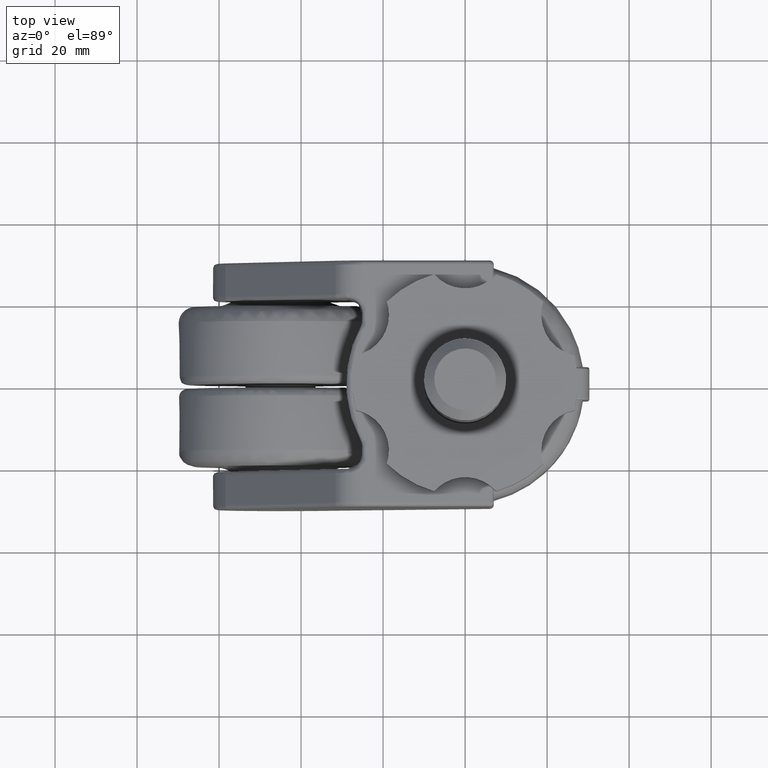
[diagram: clean part render]
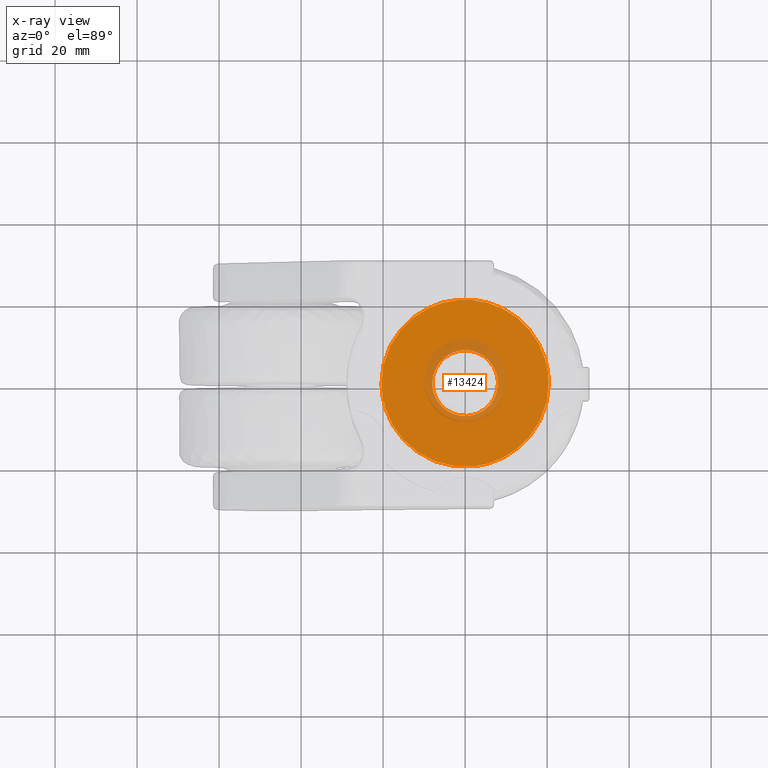
[diagram: x-ray — body ghosted, one internal face saturated and labeled with its STEP entity id]
A machine part, top view, then the same camera in x-ray: the body is ghosted and one INTERNAL B-rep face — a face not visible from any outside direction — is saturated and labeled: STEP entity #13424.
In plain terms, the highlighted face is a freeform B-spline surface patch.
Its self-contained STEP definition (entity closure, byte-faithful):
#5338=CARTESIAN_POINT('',(8.0,0.0,-5.0));
#5339=VERTEX_POINT('',#5338);
#5340=CARTESIAN_POINT('',(0.627672766013516,-7.975338669850010,-5.0));
#5341=VERTEX_POINT('',#5340);
#5342=CARTESIAN_POINT('',(8.0,0.0,-5.0));
#5343=CARTESIAN_POINT('',(8.0,-7.395123932910806,-4.999999999999999));
#5344=CARTESIAN_POINT('',(0.627672766013516,-7.975338669850010,-5.0));
#5352=(BOUNDED_CURVE()B_SPLINE_CURVE(2,(#5342,#5343,#5344),.UNSPECIFIED.,.F.,.U.)B_SPLINE_CURVE_WITH_KNOTS((3,3),(0.0,0.236331300624567),.UNSPECIFIED.)CURVE()GEOMETRIC_REPRESENTATION_ITEM()RATIONAL_B_SPLINE_CURVE((1.0,0.723120658614804,0.969723356154702))REPRESENTATION_ITEM(''));
#5353=EDGE_CURVE('',#5339,#5341,#5352,.T.);
#5355=CARTESIAN_POINT('',(-0.627672766013513,7.975338669850010,-5.0));
#5356=VERTEX_POINT('',#5355);
#5357=CARTESIAN_POINT('',(-0.627672766013513,7.975338669850010,-5.0));
#5358=CARTESIAN_POINT('',(-0.314320856252994,8.0,-5.000000000000001));
#5359=CARTESIAN_POINT('',(0.0,8.0,-5.0));
#5360=CARTESIAN_POINT('',(8.0,8.0,-5.000000000000001));
#5361=CARTESIAN_POINT('',(8.0,0.0,-5.0));
#5369=(BOUNDED_CURVE()B_SPLINE_CURVE(2,(#5357,#5358,#5359,#5360,#5361),.UNSPECIFIED.,.F.,.U.)B_SPLINE_CURVE_WITH_KNOTS((3,2,3),(0.736331300624567,0.750000000000000,1.0),.UNSPECIFIED.)CURVE()GEOMETRIC_REPRESENTATION_ITEM()RATIONAL_B_SPLINE_CURVE((0.969723356154702,0.983986122571744,1.0,0.707106781186548,1.0))REPRESENTATION_ITEM(''));
#5370=EDGE_CURVE('',#5356,#5339,#5369,.T.);
#5437=CARTESIAN_POINT('',(-8.0,0.0,-5.0));
#5438=VERTEX_POINT('',#5437);
#5439=CARTESIAN_POINT('',(0.627672766013516,-7.975338669850010,-5.000000000000001));
#5440=CARTESIAN_POINT('',(0.314320856252996,-8.000000000000002,-5.000000000000001));
#5441=CARTESIAN_POINT('',(0.0,-8.0,-5.0));
#5442=CARTESIAN_POINT('',(-8.0,-8.0,-5.000000000000001));
#5443=CARTESIAN_POINT('',(-8.0,0.0,-5.0));
#5451=(BOUNDED_CURVE()B_SPLINE_CURVE(2,(#5439,#5440,#5441,#5442,#5443),.UNSPECIFIED.,.F.,.U.)B_SPLINE_CURVE_WITH_KNOTS((3,2,3),(0.236331300624567,0.250000000000000,0.500000000000000),.UNSPECIFIED.)CURVE()GEOMETRIC_REPRESENTATION_ITEM()RATIONAL_B_SPLINE_CURVE((0.969723356154702,0.983986122571744,1.0,0.707106781186548,1.0))REPRESENTATION_ITEM(''));
#5452=EDGE_CURVE('',#5341,#5438,#5451,.T.);
#5486=CARTESIAN_POINT('',(-8.0,0.0,-5.0));
#5487=CARTESIAN_POINT('',(-8.0,7.395123932910781,-5.0));
#5488=CARTESIAN_POINT('',(-0.627672766013513,7.975338669850010,-5.0));
#5496=(BOUNDED_CURVE()B_SPLINE_CURVE(2,(#5486,#5487,#5488),.UNSPECIFIED.,.F.,.U.)B_SPLINE_CURVE_WITH_KNOTS((3,3),(0.500000000000000,0.736331300624566),.UNSPECIFIED.)CURVE()GEOMETRIC_REPRESENTATION_ITEM()RATIONAL_B_SPLINE_CURVE((1.0,0.723120658614805,0.969723356154701))REPRESENTATION_ITEM(''));
#5497=EDGE_CURVE('',#5438,#5356,#5496,.T.);
#6889=CARTESIAN_POINT('',(2.355470283446740,-20.263557470397618,-5.000000000000004));
#6890=VERTEX_POINT('',#6889);
#6904=CARTESIAN_POINT('',(-20.399999999999999,0.0,-5.0));
#6905=VERTEX_POINT('',#6904);
#6906=CARTESIAN_POINT('',(2.355470283446740,-20.263557470397622,-5.000000000000004));
#6907=CARTESIAN_POINT('',(1.181686914214468,-20.400000000000002,-4.999999999999999));
#6908=CARTESIAN_POINT('',(0.0,-20.399999999999999,-5.0));
#6909=CARTESIAN_POINT('',(-20.399999999999999,-20.399999999999999,-5.000000000000001));
#6910=CARTESIAN_POINT('',(-20.399999999999999,0.0,-5.0));
#6918=(BOUNDED_CURVE()B_SPLINE_CURVE(2,(#6906,#6907,#6908,#6909,#6910),.UNSPECIFIED.,.F.,.U.)B_SPLINE_CURVE_WITH_KNOTS((3,2,3),(0.729999999989789,0.750000000000000,1.0),.UNSPECIFIED.)CURVE()GEOMETRIC_REPRESENTATION_ITEM()RATIONAL_B_SPLINE_CURVE((0.956886118170562,0.976568542482961,1.0,0.707106781186548,1.0))REPRESENTATION_ITEM(''));
#6919=EDGE_CURVE('',#6890,#6905,#6918,.T.);
#6921=CARTESIAN_POINT('',(20.400000000607481,4.426226E-016,-5.0));
#6922=VERTEX_POINT('',#6921);
#6923=CARTESIAN_POINT('',(-20.399999999999999,0.0,-5.0));
#6924=CARTESIAN_POINT('',(-20.399999999999999,20.399999999999999,-5.000000000000001));
#6925=CARTESIAN_POINT('',(0.0,20.399999999999999,-5.0));
#6926=CARTESIAN_POINT('',(20.399999999999999,20.399999999999999,-5.000000000000001));
#6927=CARTESIAN_POINT('',(20.400000000607481,4.426226E-016,-5.0));
#6935=(BOUNDED_CURVE()B_SPLINE_CURVE(2,(#6923,#6924,#6925,#6926,#6927),.UNSPECIFIED.,.F.,.U.)B_SPLINE_CURVE_WITH_KNOTS((3,2,3),(0.0,0.250000000000000,0.500000000000000),.UNSPECIFIED.)CURVE()GEOMETRIC_REPRESENTATION_ITEM()RATIONAL_B_SPLINE_CURVE((1.0,0.707106781186548,1.0,0.707106781186548,1.0))REPRESENTATION_ITEM(''));
#6936=EDGE_CURVE('',#6905,#6922,#6935,.T.);
#6976=CARTESIAN_POINT('',(20.400000000607481,4.426226E-016,-5.0));
#6977=CARTESIAN_POINT('',(20.400000000000002,-18.166030695765734,-5.0));
#6978=CARTESIAN_POINT('',(2.355470283446740,-20.263557470397625,-5.000000000000004));
#6986=(BOUNDED_CURVE()B_SPLINE_CURVE(2,(#6976,#6977,#6978),.UNSPECIFIED.,.F.,.U.)B_SPLINE_CURVE_WITH_KNOTS((3,3),(0.500000000000000,0.729999999989789),.UNSPECIFIED.)CURVE()GEOMETRIC_REPRESENTATION_ITEM()RATIONAL_B_SPLINE_CURVE((1.0,0.730538238703586,0.956886118170563))REPRESENTATION_ITEM(''));
#6987=EDGE_CURVE('',#6922,#6890,#6986,.T.);
#13408=CARTESIAN_POINT('',(-22.437959537950821,-22.437845448085231,-5.0));
#13409=CARTESIAN_POINT('',(22.437960997680008,-22.437845448085231,-5.0));
#13410=CARTESIAN_POINT('',(-22.437959537950821,22.437955569116159,-5.0));
#13411=CARTESIAN_POINT('',(22.437960997680008,22.437955569116159,-5.0));
#13412=B_SPLINE_SURFACE_WITH_KNOTS('',1,1,((#13408,#13410),(#13409,#13411)),.UNSPECIFIED.,.F.,.F.,.U.,(2,2),(2,2),(0.0,44.875920535630833),(0.0,44.875801017201397),.UNSPECIFIED.);
#13413=ORIENTED_EDGE('',*,*,#6919,.F.);
#13414=ORIENTED_EDGE('',*,*,#6987,.F.);
#13415=ORIENTED_EDGE('',*,*,#6936,.F.);
#13416=EDGE_LOOP('',(#13413,#13414,#13415));
#13417=FACE_OUTER_BOUND('',#13416,.T.);
#13418=ORIENTED_EDGE('',*,*,#5497,.T.);
#13419=ORIENTED_EDGE('',*,*,#5370,.T.);
#13420=ORIENTED_EDGE('',*,*,#5353,.T.);
#13421=ORIENTED_EDGE('',*,*,#5452,.T.);
#13422=EDGE_LOOP('',(#13418,#13419,#13420,#13421));
#13423=FACE_BOUND('',#13422,.T.);
#13424=ADVANCED_FACE('',(#13417,#13423),#13412,.T.);